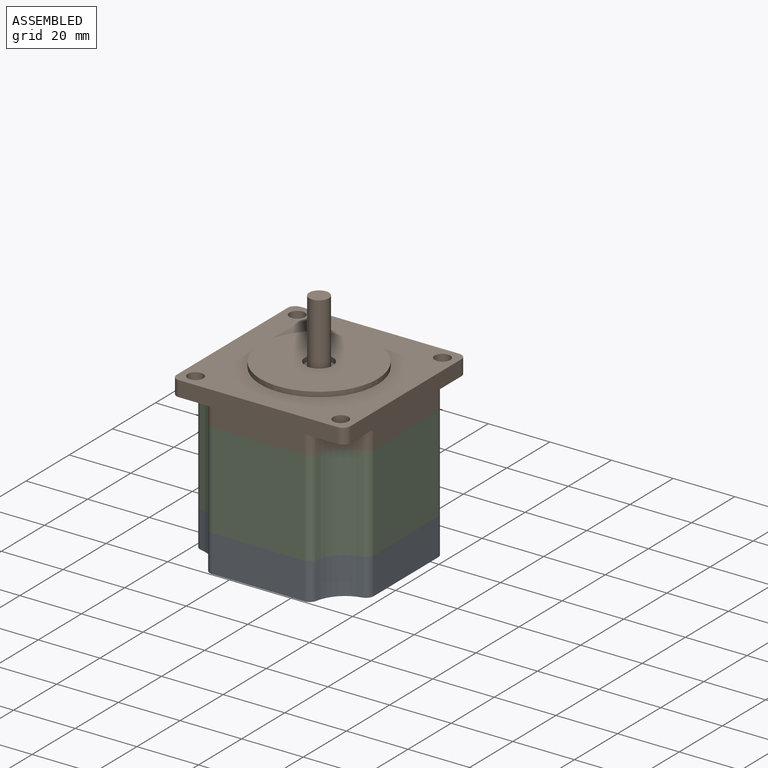
[diagram: assembled view]
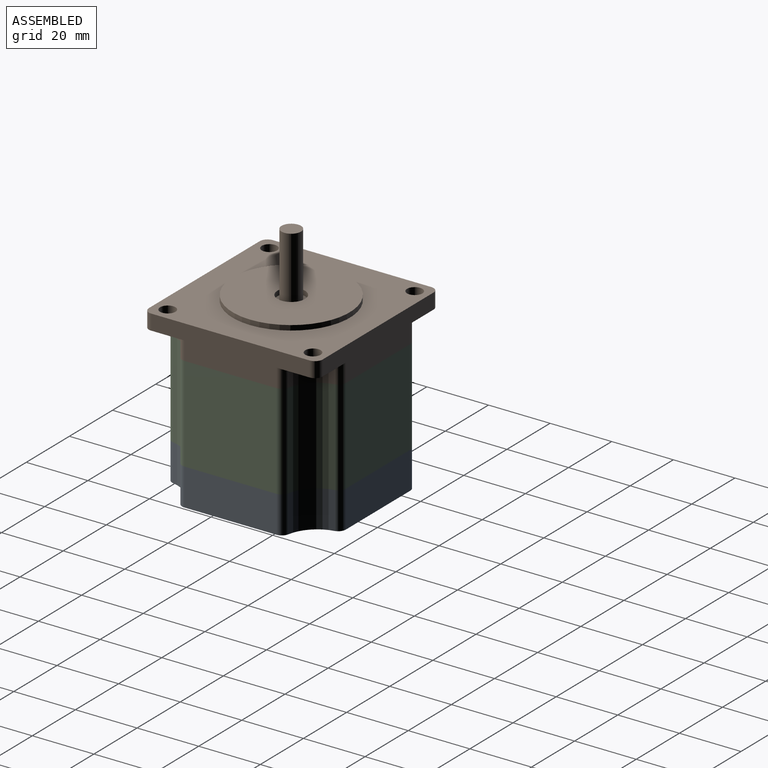
[diagram: assembled view, second angle]
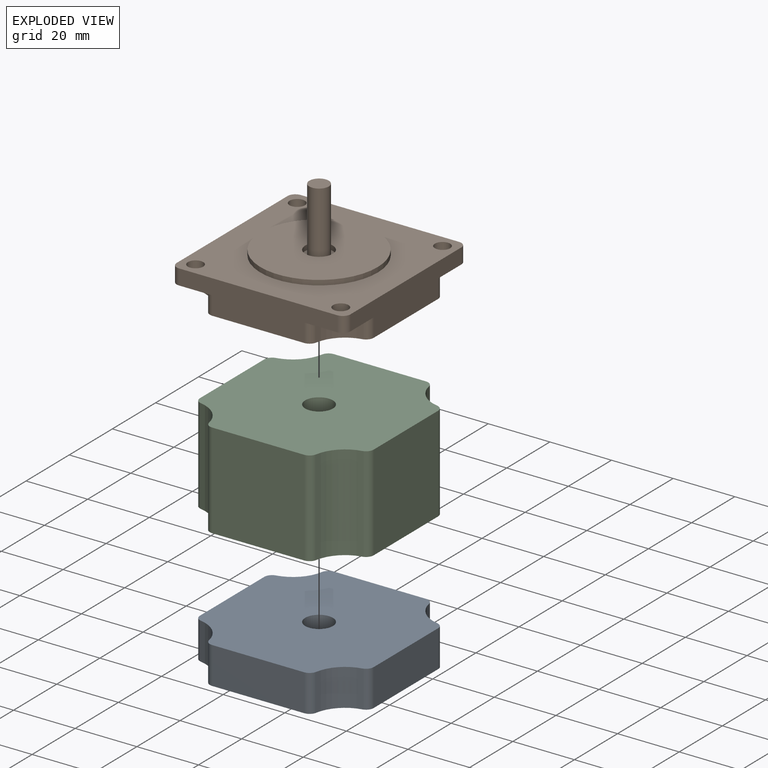
[diagram: exploded view]
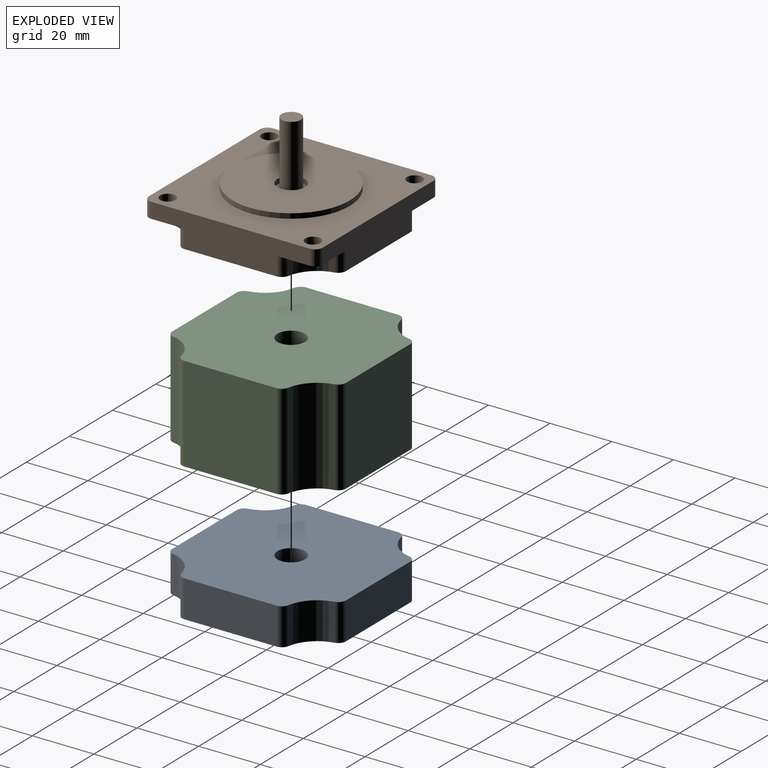
[diagram: exploded view, second angle]
ASSEMBLY  parts=3 mates=6
PART A: 19 faces, bbox 56.4x56.4x12 mm
  f0: plane 56.4x56.4mm, normal (0,0,1), area 2729.3mm2, adj f1,f2,f4,f5,f6,f7,f8,f9
  f1: plane 29.87x12mm, normal (-1,0,0), area 358.4mm2, adj f0,f3,f6,f17
  f2: cylinder r=11mm len=12mm, axis (0,0,1), area 158.2mm2, adj f0,f3,f5,f6
  f3: plane 56.4x56.4mm, normal (0,0,-1), area 2729.3mm2, adj f1,f2,f4,f5,f6,f7,f8,f9
  f4: plane 29.87x12mm, normal (0,1,0), area 358.4mm2, adj f0,f3,f5,f8
  f5: cylinder r=2.5mm len=12mm, axis (0,0,1), area 41.5mm2, adj f0,f2,f3,f4
  f6: cylinder r=2.5mm len=12mm, axis (0,0,1), area 41.5mm2, adj f0,f1,f2,f3
  f7: cylinder r=11mm len=12mm, axis (0,0,1), area 158.2mm2, adj f0,f3,f8,f10
  f8: cylinder r=2.5mm len=12mm, axis (0,0,1), area 41.5mm2, adj f0,f3,f4,f7
  f9: plane 29.87x12mm, normal (1,0,0), area 358.4mm2, adj f0,f3,f10,f12
  f10: cylinder r=2.5mm len=12mm, axis (0,0,1), area 41.5mm2, adj f0,f3,f7,f9
  f11: cylinder r=11mm len=12mm, axis (0,0,1), area 158.2mm2, adj f0,f3,f12,f14
  f12: cylinder r=2.5mm len=12mm, axis (0,0,1), area 41.5mm2, adj f0,f3,f9,f11
  f13: plane 29.87x12mm, normal (0,-1,0), area 358.4mm2, adj f0,f3,f14,f16
  f14: cylinder r=2.5mm len=12mm, axis (0,0,1), area 41.5mm2, adj f0,f3,f11,f13
  f15: cylinder r=11mm len=12mm, axis (0,0,1), area 158.2mm2, adj f0,f3,f16,f17
  f16: cylinder r=2.5mm len=12mm, axis (0,0,1), area 41.5mm2, adj f0,f3,f13,f15
  f17: cylinder r=2.5mm len=12mm, axis (0,0,1), area 41.5mm2, adj f0,f1,f3,f15
  f18: cylinder r=4.5mm len=12mm, axis (0,0,1), area 339.3mm2, adj f0,f3
PART B: 40 faces, bbox 56.4x56.4x32 mm
  f0: plane 56.4x56.4mm, normal (0,0,-1), area 2729.3mm2, adj f1,f23,f25,f26,f27,f28,f29,f30
  f1: cylinder r=4.5mm len=9mm, axis (0,0,1), area 169.6mm2, adj f0,f3
  f2: cylinder r=3.17mm len=6.35mm, axis (0,0,1), area 119.7mm2, adj f3,f4
  f3: plane 9x9mm, normal (0,0,-1), area 31.9mm2, adj f1,f2
  f4: plane 6.35x6.35mm, normal (0,0,-1), area 31.7mm2, adj f2
  f5: plane 6.35x6.35mm, normal (0,0,1), area 31.7mm2, adj f6
  f6: cylinder r=3.17mm len=21mm, axis (0,0,-1), area 418.9mm2, adj f5,f7
  f7: plane 9x9mm, normal (0,0,1), area 31.9mm2, adj f6,f8
  f8: cylinder r=4.5mm len=9mm, axis (0,0,-1), area 45.2mm2, adj f7,f9
  f9: plane 38.1x38.1mm, normal (0,0,1), area 1076.5mm2, adj f8,f10
  f10: cylinder r=19.05mm len=38.1mm, axis (0,0,-1), area 191.5mm2, adj f9,f18
  f11: cylinder r=2.5mm len=5mm, axis (0,0,-1), area 78.5mm2, adj f18,f20
  f12: cylinder r=2.5mm len=5mm, axis (0,0,-1), area 78.5mm2, adj f18,f21
  f13: cylinder r=2.5mm len=5mm, axis (0,0,-1), area 78.5mm2, adj f18,f22
  f14: cylinder r=2.5mm len=5mm, axis (0,0,-1), area 78.5mm2, adj f18,f24
  f15: cylinder r=2.5mm len=5mm, axis (0,0,1), area 19.6mm2, adj f18,f20,f23,f35
  f16: cylinder r=2.5mm len=5mm, axis (0,0,-1), area 19.6mm2, adj f18,f21,f31,f35
  f17: cylinder r=2.5mm len=5mm, axis (0,0,1), area 19.6mm2, adj f18,f22,f26,f31
  f18: plane 56.4x56.4mm, normal (0,0,1), area 1957mm2, adj f10,f11,f12,f13,f14,f15,f16,f17
  f19: cylinder r=2.5mm len=5mm, axis (0,0,-1), area 19.6mm2, adj f18,f23,f24,f26
  f20: plane 13.27x13.27mm, normal (0,0,-1), area 76mm2, adj f11,f15,f23,f35,f37,f38,f39
  f21: plane 13.27x13.27mm, normal (0,0,-1), area 76mm2, adj f12,f16,f31,f33,f34,f35,f36
  f22: plane 13.27x13.27mm, normal (0,0,-1), area 76mm2, adj f13,f17,f26,f29,f30,f31,f32
  f23: plane 51.4x11mm, normal (-1,0,0), area 436.2mm2, adj f0,f15,f18,f19,f20,f24,f28,f39
  f24: plane 13.27x13.27mm, normal (0,0,-1), area 76mm2, adj f14,f19,f23,f25,f26,f27,f28
  f25: cylinder r=11mm len=8.77mm, axis (0,0,1), area 79.1mm2, adj f0,f24,f27,f28
  f26: plane 51.4x11mm, normal (0,1,0), area 436.2mm2, adj f0,f17,f18,f19,f22,f24,f27,f30
  f27: cylinder r=2.5mm len=6mm, axis (0,0,1), area 20.8mm2, adj f0,f24,f25,f26
  f28: cylinder r=2.5mm len=6mm, axis (0,0,1), area 20.8mm2, adj f0,f23,f24,f25
  f29: cylinder r=11mm len=8.77mm, axis (0,0,1), area 79.1mm2, adj f0,f22,f30,f32
  f30: cylinder r=2.5mm len=6mm, axis (0,0,1), area 20.8mm2, adj f0,f22,f26,f29
  f31: plane 51.4x11mm, normal (1,0,0), area 436.2mm2, adj f0,f16,f17,f18,f21,f22,f32,f34
  f32: cylinder r=2.5mm len=6mm, axis (0,0,1), area 20.8mm2, adj f0,f22,f29,f31
  f33: cylinder r=11mm len=8.77mm, axis (0,0,1), area 79.1mm2, adj f0,f21,f34,f36
  f34: cylinder r=2.5mm len=6mm, axis (0,0,1), area 20.8mm2, adj f0,f21,f31,f33
  f35: plane 51.4x11mm, normal (0,-1,0), area 436.2mm2, adj f0,f15,f16,f18,f20,f21,f36,f38
  f36: cylinder r=2.5mm len=6mm, axis (0,0,1), area 20.8mm2, adj f0,f21,f33,f35
  f37: cylinder r=11mm len=8.77mm, axis (0,0,1), area 79.1mm2, adj f0,f20,f38,f39
  f38: cylinder r=2.5mm len=6mm, axis (0,0,1), area 20.8mm2, adj f0,f20,f35,f37
  f39: cylinder r=2.5mm len=6mm, axis (0,0,1), area 20.8mm2, adj f0,f20,f23,f37
PART C: 19 faces, bbox 56.4x56.4x31 mm
  f0: plane 56.4x56.4mm, normal (0,0,1), area 2729.3mm2, adj f1,f3,f4,f5,f6,f7,f8,f9
  f1: cylinder r=4.5mm len=31mm, axis (0,0,1), area 876.5mm2, adj f0,f2
  f2: plane 56.4x56.4mm, normal (0,0,-1), area 2729.3mm2, adj f1,f3,f4,f5,f6,f7,f8,f9
  f3: plane 31x29.87mm, normal (-1,0,0), area 925.9mm2, adj f0,f2,f7,f18
  f4: cylinder r=11mm len=31mm, axis (0,0,1), area 408.6mm2, adj f0,f2,f6,f7
  f5: plane 31x29.87mm, normal (0,1,0), area 925.9mm2, adj f0,f2,f6,f9
  f6: cylinder r=2.5mm len=31mm, axis (0,0,1), area 107.3mm2, adj f0,f2,f4,f5
  f7: cylinder r=2.5mm len=31mm, axis (0,0,1), area 107.3mm2, adj f0,f2,f3,f4
  f8: cylinder r=11mm len=31mm, axis (0,0,1), area 408.6mm2, adj f0,f2,f9,f11
  f9: cylinder r=2.5mm len=31mm, axis (0,0,1), area 107.3mm2, adj f0,f2,f5,f8
  f10: plane 31x29.87mm, normal (1,0,0), area 925.9mm2, adj f0,f2,f11,f13
  f11: cylinder r=2.5mm len=31mm, axis (0,0,1), area 107.3mm2, adj f0,f2,f8,f10
  f12: cylinder r=11mm len=31mm, axis (0,0,1), area 408.6mm2, adj f0,f2,f13,f15
  f13: cylinder r=2.5mm len=31mm, axis (0,0,1), area 107.3mm2, adj f0,f2,f10,f12
  f14: plane 31x29.87mm, normal (0,-1,0), area 925.9mm2, adj f0,f2,f15,f17
  f15: cylinder r=2.5mm len=31mm, axis (0,0,1), area 107.3mm2, adj f0,f2,f12,f14
  f16: cylinder r=11mm len=31mm, axis (0,0,1), area 408.6mm2, adj f0,f2,f17,f18
  f17: cylinder r=2.5mm len=31mm, axis (0,0,1), area 107.3mm2, adj f0,f2,f14,f16
  f18: cylinder r=2.5mm len=31mm, axis (0,0,1), area 107.3mm2, adj f0,f2,f3,f16
PLACE A t=(11.47,-51.93,-75.9)mm
PLACE B t=(11.47,-51.93,-75.9)mm
PLACE C t=(11.47,-51.93,-75.9)mm
MATE planar A.f18 <-> C.f18  axis (0,0,1) through (11.47,-51.93,-112.9)mm
MATE planar C.f14 <-> B.f35  axis (0,-1,0) through (11.47,-80.13,-97.4)mm
MATE planar B.f0 <-> C.f0  axis (0,0,-1) through (11.47,-80.13,-81.9)mm
MATE planar C.f14 <-> A.f13  axis (0,-1,0) through (11.47,-80.13,-97.4)mm
MATE planar B.f31 <-> C.f10  axis (1,0,0) through (39.67,-66.87,-75.9)mm
MATE planar C.f10 <-> A.f9  axis (1,0,0) through (39.67,-51.93,-97.4)mm
